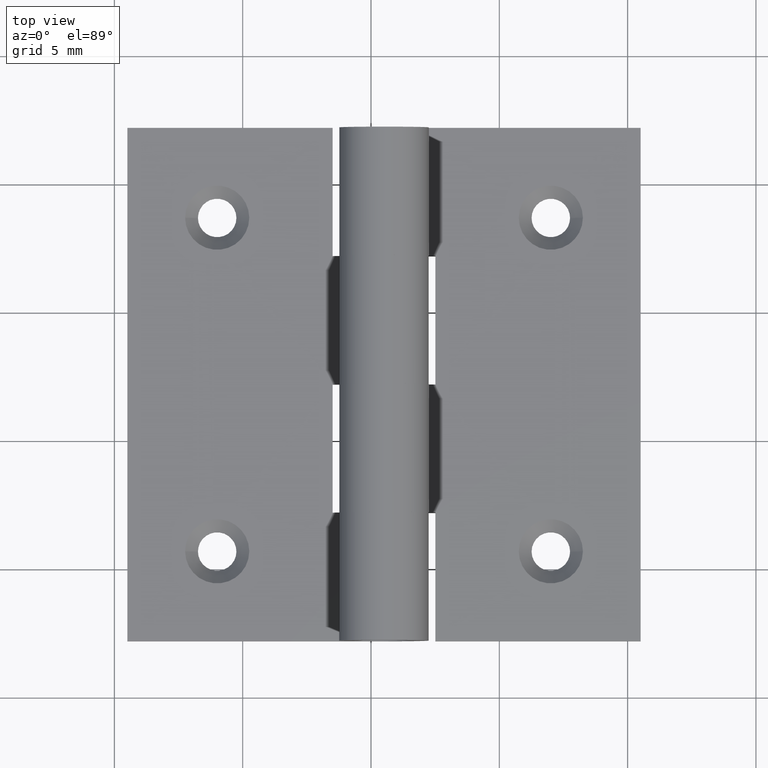
[diagram: clean part render]
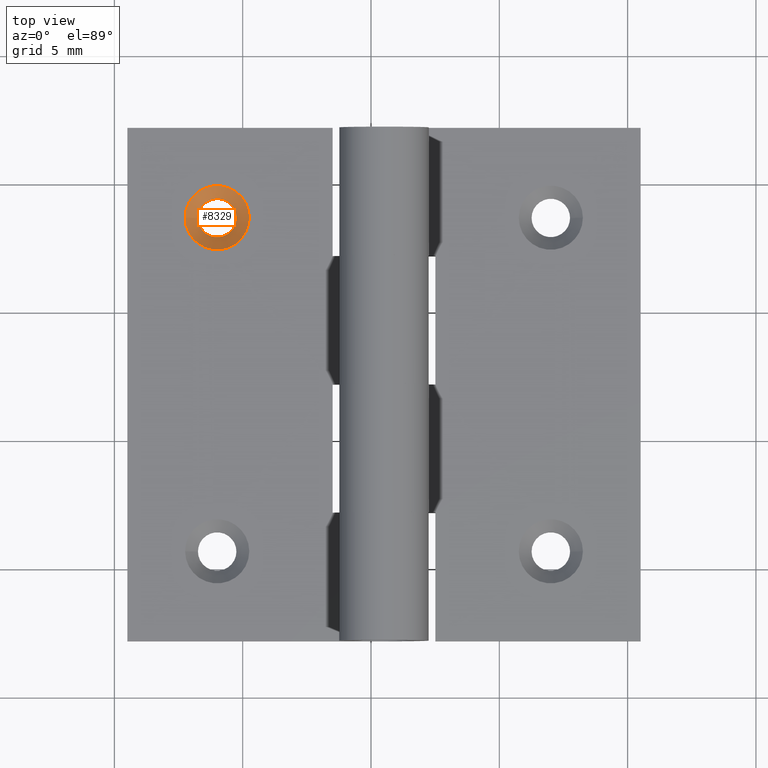
[diagram: same view with one face highlighted and labeled with its STEP entity id]
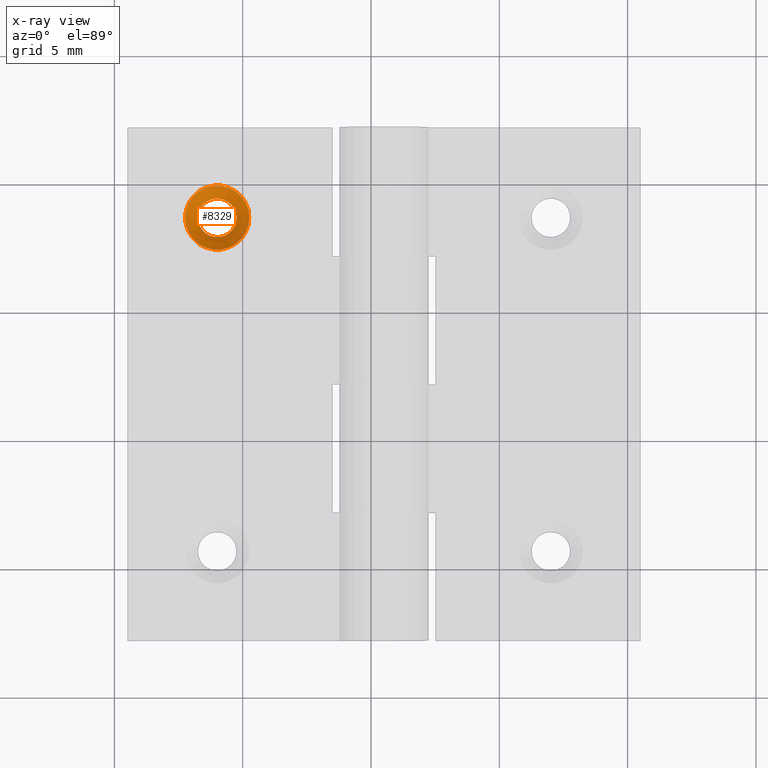
[diagram: x-ray of the same camera — body ghosted, the highlighted face saturated]
A machine part, top view. The second image highlights one B-rep face of the part: STEP entity #8329.
The next image is the same camera in x-ray: the body ghosted, the highlighted face saturated — about 0% of this face is hidden behind the body in this view.
In plain terms, the highlighted conical surface has half-angle 45 deg.
Its self-contained STEP definition (entity closure, byte-faithful):
#978 = VERTEX_POINT ( 'NONE', #1235 ) ;
#1195 = EDGE_CURVE ( 'NONE', #978, #978, #9570, .T. ) ;
#1235 = CARTESIAN_POINT ( 'NONE',  ( -9.500000000000012434, 6.499999999999999112, 0.7000000000000007327 ) ) ;
#1803 = CIRCLE ( 'NONE', #2992, 0.7500000000000006661 ) ;
#2920 = VERTEX_POINT ( 'NONE', #9476 ) ;
#2992 = AXIS2_PLACEMENT_3D ( 'NONE', #8336, #5064, #10127 ) ;
#3027 = FACE_OUTER_BOUND ( 'NONE', #9295, .T. ) ;
#3184 = DIRECTION ( 'NONE',  ( 1.000000000000000000, 0.000000000000000000, 0.000000000000000000 ) ) ;
#3418 = EDGE_LOOP ( 'NONE', ( #5653 ) ) ;
#3687 = EDGE_CURVE ( 'NONE', #2920, #2920, #1803, .T. ) ;
#4313 = FACE_BOUND ( 'NONE', #3418, .T. ) ;
#5064 = DIRECTION ( 'NONE',  ( 0.000000000000000000, 0.000000000000000000, 1.000000000000000000 ) ) ;
#5250 = DIRECTION ( 'NONE',  ( -1.192622389734054877E-16, 0.000000000000000000, -1.000000000000000000 ) ) ;
#5645 = DIRECTION ( 'NONE',  ( 0.000000000000000000, 0.000000000000000000, 1.000000000000000000 ) ) ;
#5653 = ORIENTED_EDGE ( 'NONE', *, *, #3687, .F. ) ;
#6740 = AXIS2_PLACEMENT_3D ( 'NONE', #7724, #5250, #6911 ) ;
#6911 = DIRECTION ( 'NONE',  ( -1.000000000000000000, 0.000000000000000000, 8.673617379883980005E-17 ) ) ;
#7398 = CARTESIAN_POINT ( 'NONE',  ( -8.250000000000003553, 6.499999999999999112, 0.1999999999999969857 ) ) ;
#7724 = CARTESIAN_POINT ( 'NONE',  ( -8.250000000000003553, 6.499999999999999112, 0.7000000000000006217 ) ) ;
#8329 = ADVANCED_FACE ( 'NONE', ( #3027, #4313 ), #8994, .F. ) ;
#8336 = CARTESIAN_POINT ( 'NONE',  ( -8.250000000000003553, 6.499999999999999112, 0.1999999999999969857 ) ) ;
#8994 = CONICAL_SURFACE ( 'NONE', #9817, 0.7500000000000006661, 0.7853981633974523868 ) ;
#9295 = EDGE_LOOP ( 'NONE', ( #9930 ) ) ;
#9476 = CARTESIAN_POINT ( 'NONE',  ( -9.000000000000005329, 6.499999999999999112, 0.1999999999999969857 ) ) ;
#9570 = CIRCLE ( 'NONE', #6740, 1.250000000000007994 ) ;
#9817 = AXIS2_PLACEMENT_3D ( 'NONE', #7398, #5645, #3184 ) ;
#9930 = ORIENTED_EDGE ( 'NONE', *, *, #1195, .F. ) ;
#10127 = DIRECTION ( 'NONE',  ( -1.000000000000000000, 0.000000000000000000, 0.000000000000000000 ) ) ;